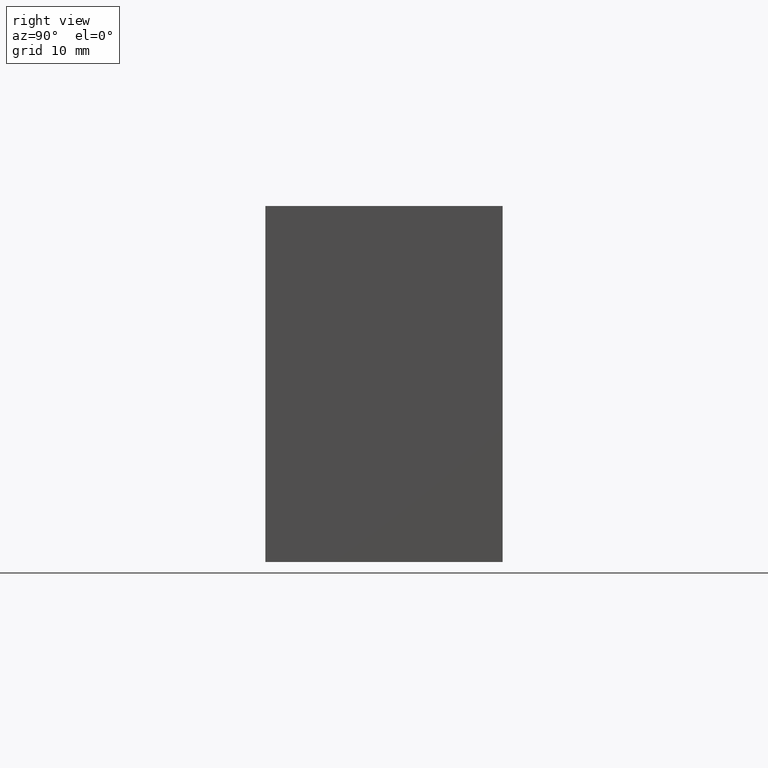
[diagram: clean part render]
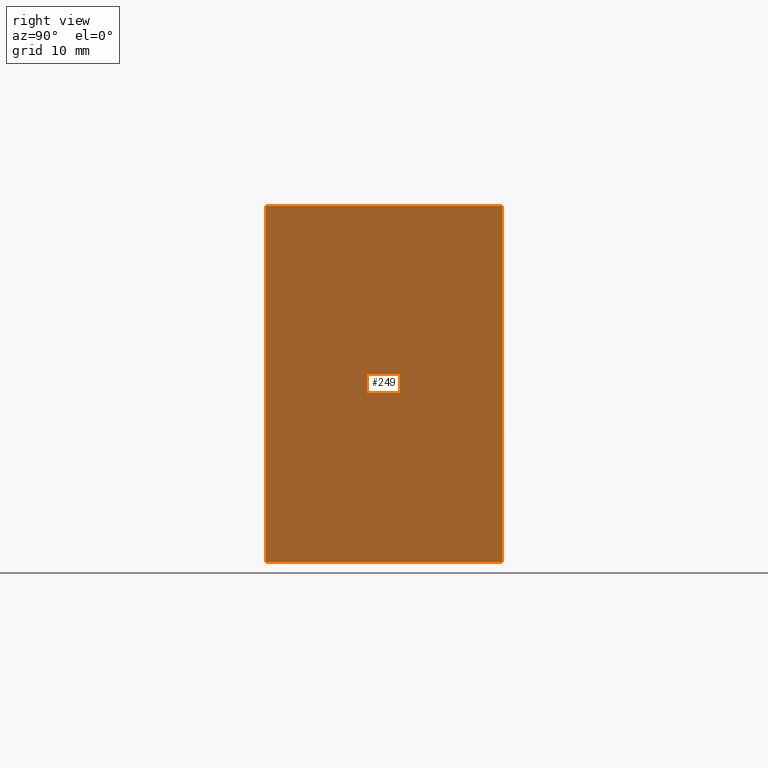
[diagram: same view with one face highlighted and labeled with its STEP entity id]
A machine part, right view. The second image highlights one B-rep face of the part: STEP entity #249.
In plain terms, the highlighted planar face has unit normal (1, 0, 0).
Its self-contained STEP definition (entity closure, byte-faithful):
#29=PLANE('',#300);
#45=FACE_OUTER_BOUND('',#65,.T.);
#65=EDGE_LOOP('',(#211,#212,#213,#214));
#85=LINE('',#435,#103);
#86=LINE('',#438,#104);
#87=LINE('',#440,#105);
#88=LINE('',#441,#106);
#103=VECTOR('',#366,10.);
#104=VECTOR('',#369,10.);
#105=VECTOR('',#370,10.);
#106=VECTOR('',#371,10.);
#137=VERTEX_POINT('',#431);
#138=VERTEX_POINT('',#433);
#139=VERTEX_POINT('',#437);
#140=VERTEX_POINT('',#439);
#165=EDGE_CURVE('',#137,#138,#85,.T.);
#166=EDGE_CURVE('',#139,#137,#86,.T.);
#167=EDGE_CURVE('',#140,#138,#87,.T.);
#168=EDGE_CURVE('',#139,#140,#88,.T.);
#211=ORIENTED_EDGE('',*,*,#166,.T.);
#212=ORIENTED_EDGE('',*,*,#165,.T.);
#213=ORIENTED_EDGE('',*,*,#167,.F.);
#214=ORIENTED_EDGE('',*,*,#168,.F.);
#249=ADVANCED_FACE('',(#45),#29,.T.);
#300=AXIS2_PLACEMENT_3D('',#436,#367,#368);
#366=DIRECTION('',(0.,0.,1.));
#367=DIRECTION('center_axis',(1.,2.22044604925031E-16,0.));
#368=DIRECTION('ref_axis',(-2.22044604925031E-16,1.,0.));
#369=DIRECTION('',(-2.22044604925031E-16,1.,0.));
#370=DIRECTION('',(-2.22044604925031E-16,1.,0.));
#371=DIRECTION('',(0.,0.,1.));
#431=CARTESIAN_POINT('',(25.,10.,0.));
#433=CARTESIAN_POINT('',(25.,10.,30.));
#435=CARTESIAN_POINT('',(25.,10.,0.));
#436=CARTESIAN_POINT('Origin',(25.,-10.,0.));
#437=CARTESIAN_POINT('',(25.,-10.,0.));
#438=CARTESIAN_POINT('',(25.,-10.,0.));
#439=CARTESIAN_POINT('',(25.,-10.,30.));
#440=CARTESIAN_POINT('',(25.,-10.,30.));
#441=CARTESIAN_POINT('',(25.,-10.,0.));